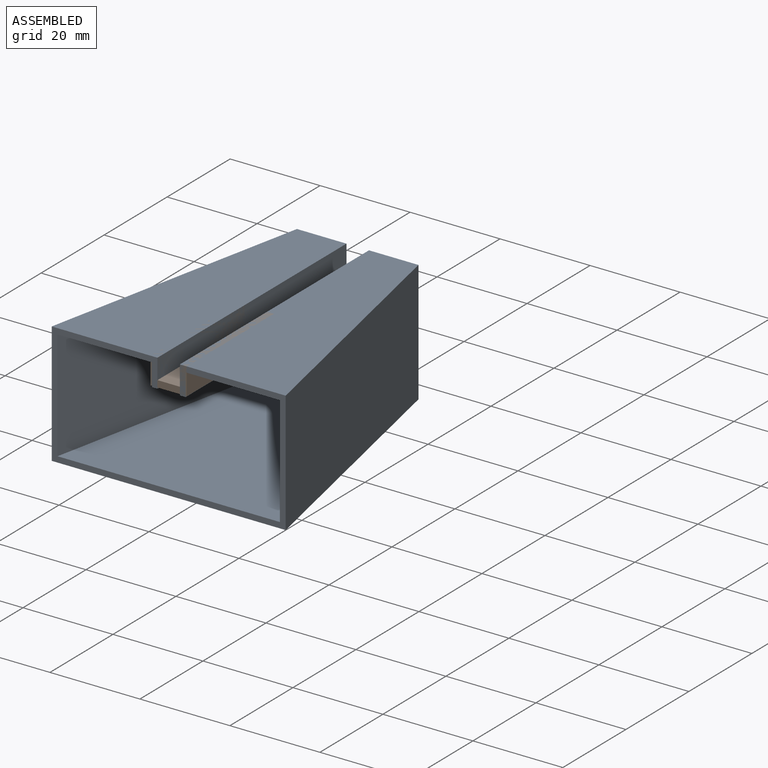
[diagram: assembled view]
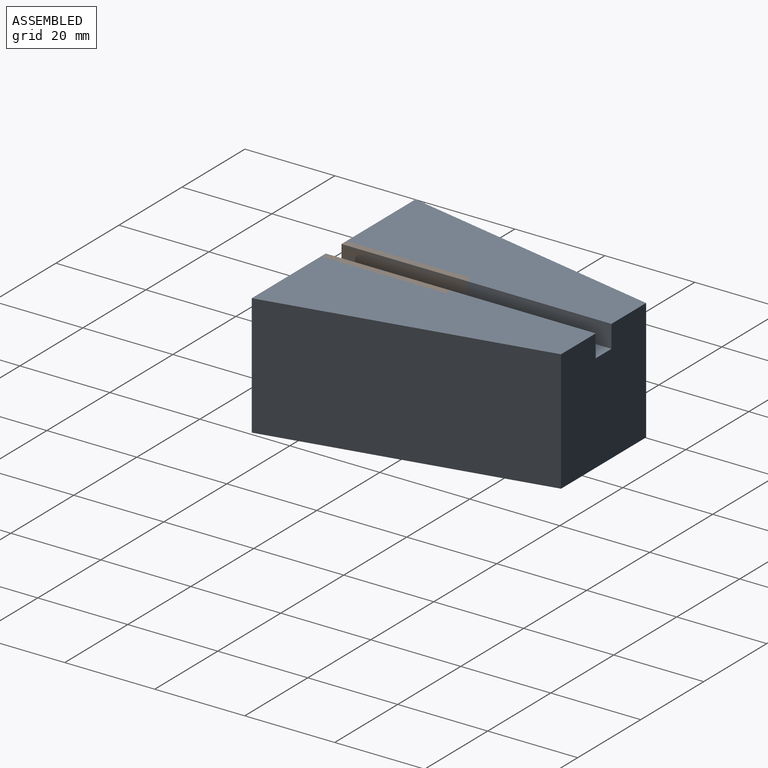
[diagram: assembled view, second angle]
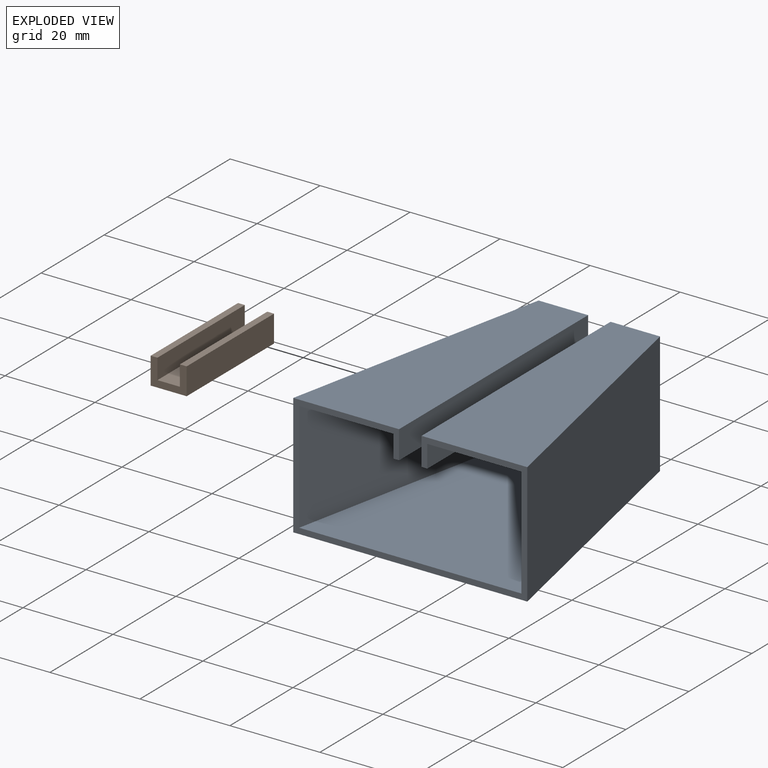
[diagram: exploded view]
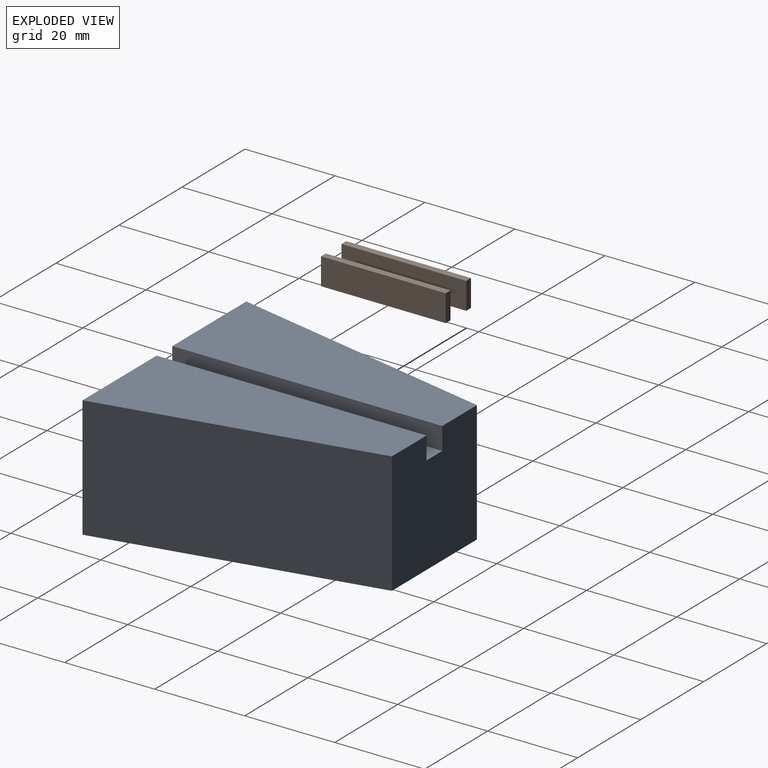
[diagram: exploded view, second angle]
ASSEMBLY  parts=2 mates=2
PART A: 20 faces, bbox 52x60x27 mm
  f0: plane 52x27mm, normal (0,-1,0), area 201.9mm2, adj f2,f3,f4,f5,f6,f7,f9,f11
  f1: plane 27x27mm, normal (0,1,0), area 704mm2, adj f2,f3,f4,f5,f6,f7,f8,f9
  f2: plane 60x23.5mm, normal (0,0,1), area 1035mm2, adj f0,f1,f3,f9
  f3: plane 60x27mm, normal (-0.98,0.2,0), area 1654.8mm2, adj f0,f1,f2,f4
  f4: plane 60x52mm, normal (0,0,-1), area 2370mm2, adj f0,f1,f3,f5
  f5: plane 60x27mm, normal (0.98,0.2,0), area 1654.8mm2, adj f0,f1,f4,f6
  f6: plane 60x23.5mm, normal (0,0,1), area 1035mm2, adj f0,f1,f5,f7
  f7: plane 60x6.27mm, normal (-1,0,0), area 335.2mm2, adj f0,f1,f6,f8,f17,f19
  f8: plane 32.27x5mm, normal (0,0,1), area 161.4mm2, adj f1,f7,f9,f19
  f9: plane 60x6.27mm, normal (1,0,0), area 335.2mm2, adj f0,f1,f2,f8,f17,f19
  f10: plane 24.93x24.46mm, normal (0,-1,0), area 572.2mm2, adj f11,f12,f13,f14,f15,f16,f17,f18
  f11: plane 58.73x20.93mm, normal (0,0,-1), area 870.1mm2, adj f0,f10,f12,f18
  f12: plane 58.73x24.46mm, normal (0.98,-0.2,0), area 1467.4mm2, adj f0,f10,f11,f13
  f13: plane 58.73x49.41mm, normal (0,0,1), area 2183mm2, adj f0,f10,f12,f14
  f14: plane 58.73x24.46mm, normal (-0.98,-0.2,0), area 1467.4mm2, adj f0,f10,f13,f15
  f15: plane 58.73x20.93mm, normal (0,0,-1), area 870.1mm2, adj f0,f10,f14,f16
  f16: plane 58.73x5mm, normal (1,0,0), area 293.7mm2, adj f0,f10,f15,f17
  f17: plane 58.73x7.54mm, normal (0,0,-1), area 304.2mm2, adj f0,f7,f9,f10,f16,f18,f19
  f18: plane 58.73x5mm, normal (-1,0,0), area 293.6mm2, adj f0,f10,f11,f17
  f19: plane 5x1.27mm, normal (0,-1,0), area 6.4mm2, adj f7,f8,f9,f17
PART B: 12 faces, bbox 8x27.7x6 mm
  f0: plane 6x1.5mm, normal (0,1,0), area 9mm2, adj f1,f2,f3,f4
  f1: plane 27.73x8mm, normal (0,0,1), area 146.8mm2, adj f0,f2,f4,f6,f8,f9,f10,f11
  f2: plane 27.73x6mm, normal (-1,0,0), area 166.4mm2, adj f0,f1,f3,f9
  f3: plane 27.73x1.5mm, normal (0,0,-1), area 41.6mm2, adj f0,f2,f4,f9
  f4: plane 27.73x6mm, normal (1,0,0), area 147.3mm2, adj f0,f1,f3,f5,f9,f11
  f5: plane 12.73x5mm, normal (0,0,-1), area 63.6mm2, adj f4,f6,f9,f11
  f6: plane 27.73x6mm, normal (-1,0,0), area 147.3mm2, adj f1,f5,f7,f9,f10,f11
  f7: plane 27.73x1.5mm, normal (0,0,-1), area 41.6mm2, adj f6,f8,f9,f10
  f8: plane 27.73x6mm, normal (1,0,0), area 166.4mm2, adj f1,f7,f9,f10
  f9: plane 8x6mm, normal (0,-1,0), area 25.5mm2, adj f1,f2,f3,f4,f5,f6,f7,f8
  f10: plane 6x1.5mm, normal (0,1,0), area 9mm2, adj f1,f6,f7,f8
  f11: plane 5x1.5mm, normal (0,1,0), area 7.5mm2, adj f1,f4,f5,f6
PLACE A t=(-24.45,12.62,3.41)mm
PLACE B rot(axis=(0,-1,0),180deg) t=(-24.45,-19.65,14.91)mm
MATE fastened A.f2 <-> B.f7  axis (0,0,1) through (-26.95,-47.38,16.91)mm
MATE parallel B.f7 <-> A.f2  axis (0,0,-1) through (-26.95,-47.38,16.91)mm
